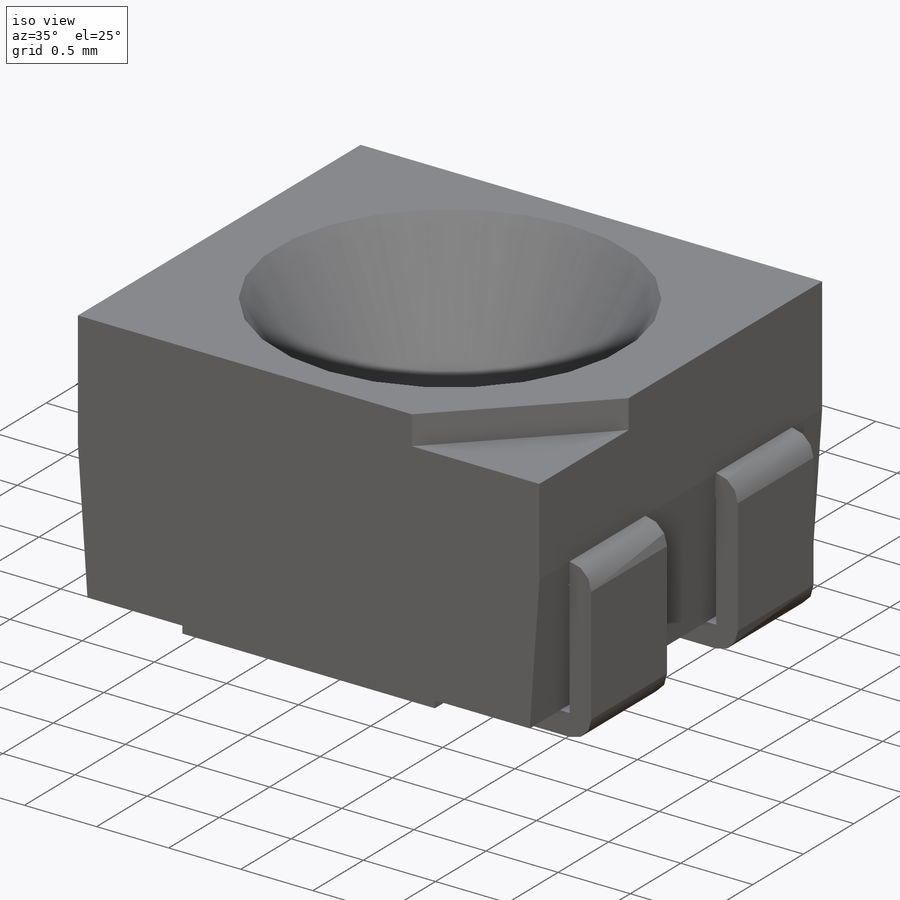
[diagram: iso view]
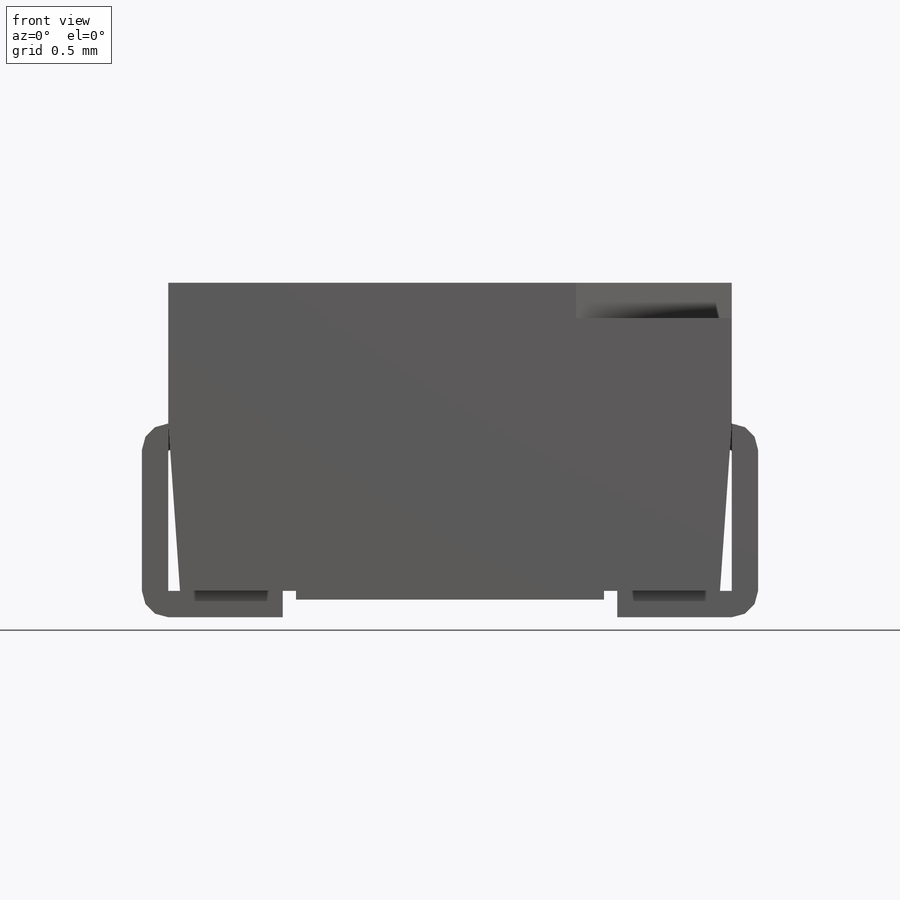
[diagram: front view]
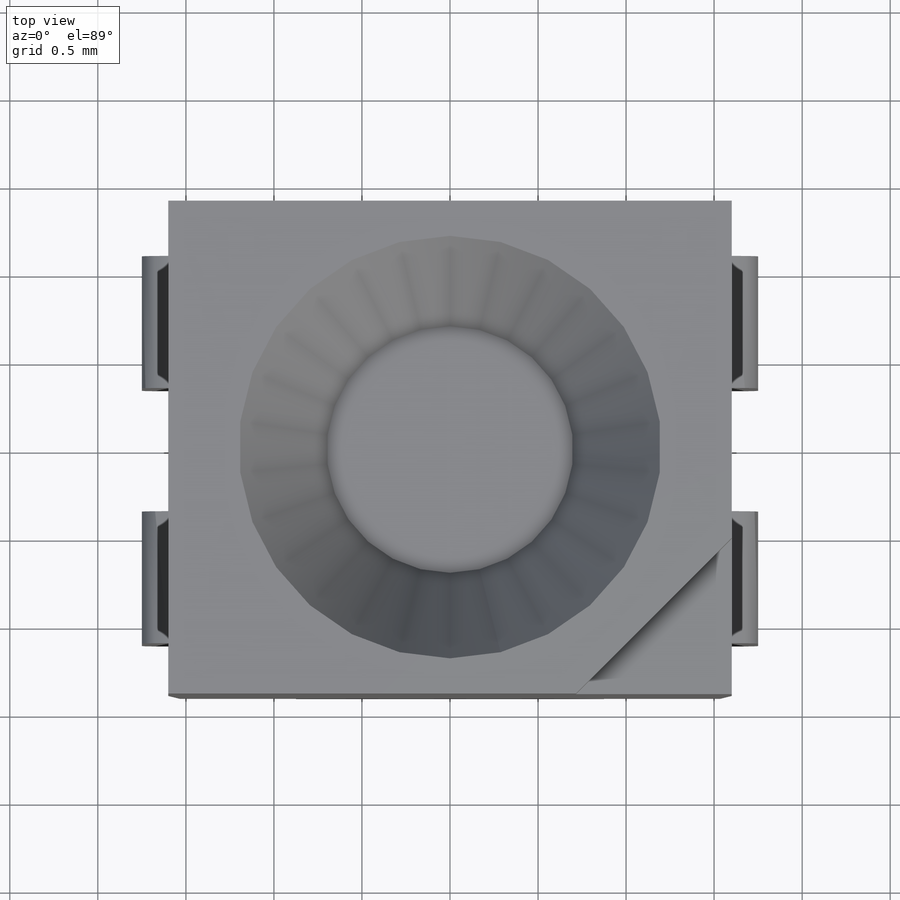
[diagram: top view]
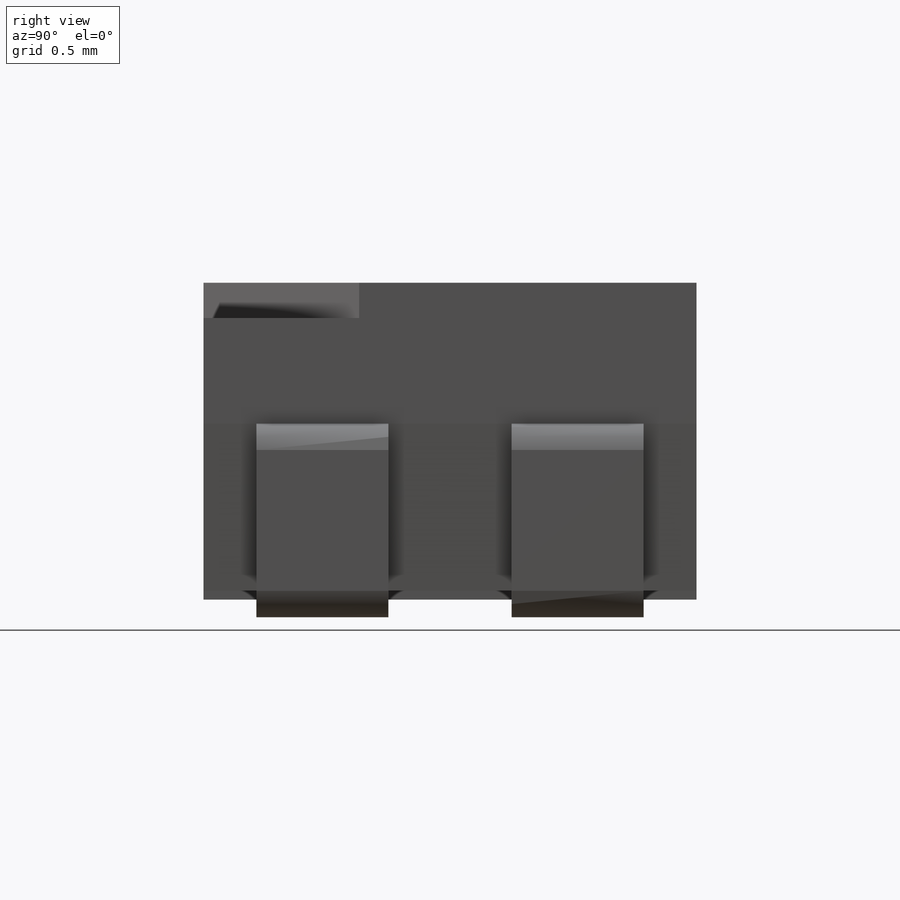
[diagram: right view]
SOLIDWORKS PART (.sldprt)
format: sldprt  version: not decoded by parser v0  size: 803,328 bytes
history: native  units: mm
features: sketch x6, extrude x3, plane x3, cut_extrude x3, material x1, chamfer x1 (+12 scaffold rows collapsed)
feature tree (29):
  scaffold x12  (default folders/planes/origin — collapsed)
  material  "Material <not specified>"
  sketch  "Sketch1"  dims[c1.D9=0.15mm c1.D1=3.2mm c1.D2=~4.291667mm c2.D2=4.0deg c2.D3=0.8mm c2.D4=1.8mm c2.D5=0.36mm c2.D6=2.4mm c3.D5=0.36mm c4.D5=95.0deg c4.D6=~0.361375mm c5.D6=89.0deg c5.D7=1.75mm c5.D8=0.05mm c5.D5=1.1mm c6.D6=0.8mm c6.D5=1.1mm c7.D6=0.8mm c7.D10=0.1mm c7.D5=1.1mm c8.D6=0.8mm c8.D9=3.55mm c8.D10=0.15mm]
  extrude  "Extrude1"  Depth=2.8mm
  plane  "Plane2"  Offset=1mm
  sketch  "Sketch4"  dims[c1.D1=2.4mm c1.D2=1.4mm c1.D3=~1.64441mm c2.D3=45.0deg c2.D4=1.25mm]
  cut_extrude  "Cut-Extrude1"  Depth=0.8mm
  chamfer  "Chamfer1"  Distance=0.8mm
  cut_extrude  "Cut-Extrude2"  [1 undecoded]
  sketch  "Sketch4<5>"  dims[D1=0.2mm]
  plane  "Plane3"  Offset=0.35mm
  sketch  "Sketch8"  dims[c1.D2=0.15mm c1.D6=0.01mm c1.D1=0.8mm c1.D3=1.9mm c1.D4=3.5mm c1.D5=0.8mm c2.D6=0.025mm]
  plane  "Plane4"  Offset=0.35mm
  sketch  "Sketch10"  dims[c1.D2=0.15mm c1.D3=0.15mm c1.D4=0.15mm c1.D7=0.005mm c1.D8=0.005mm c1.D1=0.8mm c2.D2=0.15mm c2.D3=1.1mm c2.D4=3.5mm c2.D5=0.8mm c2.D6=1.9mm]
  extrude  "Extrude2"  Depth=0.75mm
  extrude  "Extrude3"  Depth=0.75mm
  sketch  "Sketch11"
  cut_extrude  "Cut-Extrude3"  Depth=0.01mm
decode coverage: 11 of 13 modeling features carry decoded parameters
note: ~ marks probable driven/reference dimensions
note: 1 parameter value undecoded
note: suppression state not decoded; provenance and decode notes live in map.json
